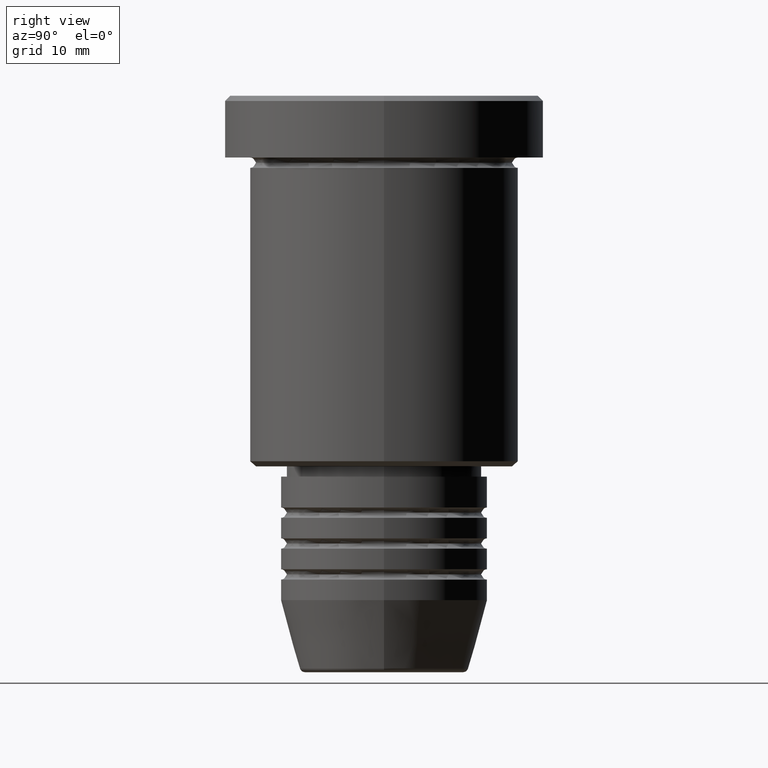
[diagram: clean part render]
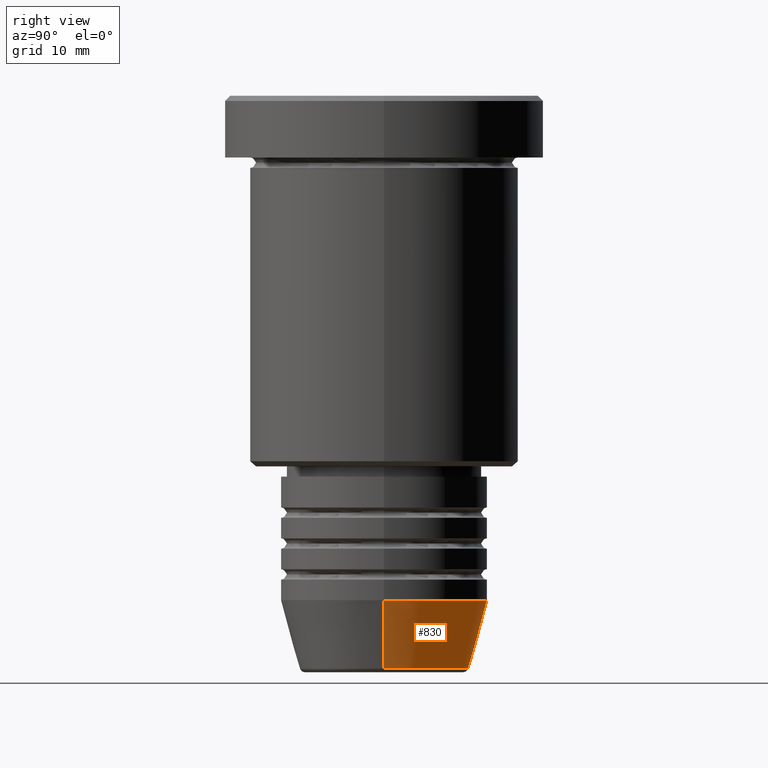
[diagram: same view with one face highlighted and labeled with its STEP entity id]
A machine part, right view. The second image highlights one B-rep face of the part: STEP entity #830.
In plain terms, the highlighted conical surface has half-angle 15 deg.
Its self-contained STEP definition (entity closure, byte-faithful):
#14 = CIRCLE ( 'NONE', #67, 10.00000000000000000 ) ;
#55 = CARTESIAN_POINT ( 'NONE',  ( 0.000000000000000000, 0.000000000000000000, -48.99999999999999289 ) ) ;
#58 = VERTEX_POINT ( 'NONE', #1066 ) ;
#67 = AXIS2_PLACEMENT_3D ( 'NONE', #55, #610, #976 ) ;
#183 = CARTESIAN_POINT ( 'NONE',  ( 10.00000000000000000, 0.000000000000000000, -48.99999999999999289 ) ) ;
#187 = EDGE_CURVE ( 'NONE', #332, #577, #562, .T. ) ;
#196 = DIRECTION ( 'NONE',  ( -0.000000000000000000, -0.000000000000000000, 1.000000000000000000 ) ) ;
#200 = ORIENTED_EDGE ( 'NONE', *, *, #1173, .T. ) ;
#226 = VERTEX_POINT ( 'NONE', #183 ) ;
#250 = CIRCLE ( 'NONE', #964, 8.223655072137191269 ) ;
#251 = ORIENTED_EDGE ( 'NONE', *, *, #792, .F. ) ;
#332 = VERTEX_POINT ( 'NONE', #539 ) ;
#353 = CONICAL_SURFACE ( 'NONE', #481, 10.00000000000000000, 0.2617993877991500740 ) ;
#369 = DIRECTION ( 'NONE',  ( -0.000000000000000000, -0.000000000000000000, 1.000000000000000000 ) ) ;
#375 = DIRECTION ( 'NONE',  ( 1.000000000000000000, 0.000000000000000000, 0.000000000000000000 ) ) ;
#465 = DIRECTION ( 'NONE',  ( 1.000000000000000000, 0.000000000000000000, 0.000000000000000000 ) ) ;
#481 = AXIS2_PLACEMENT_3D ( 'NONE', #677, #196, #465 ) ;
#539 = CARTESIAN_POINT ( 'NONE',  ( -8.223655072137191269, 1.115877042642912054E-15, -55.62940952255125637 ) ) ;
#542 = LINE ( 'NONE', #861, #909 ) ;
#562 = LINE ( 'NONE', #920, #1048 ) ;
#577 = VERTEX_POINT ( 'NONE', #690 ) ;
#610 = DIRECTION ( 'NONE',  ( -0.000000000000000000, -0.000000000000000000, 1.000000000000000000 ) ) ;
#663 = EDGE_CURVE ( 'NONE', #226, #577, #14, .T. ) ;
#677 = CARTESIAN_POINT ( 'NONE',  ( 0.000000000000000000, 0.000000000000000000, -48.99999999999999289 ) ) ;
#690 = CARTESIAN_POINT ( 'NONE',  ( -10.00000000000000000, 1.224646799147353256E-15, -48.99999999999999289 ) ) ;
#759 = DIRECTION ( 'NONE',  ( 0.2588190451025213501, 0.000000000000000000, 0.9659258262890680902 ) ) ;
#792 = EDGE_CURVE ( 'NONE', #58, #226, #542, .T. ) ;
#830 = ADVANCED_FACE ( 'NONE', ( #932 ), #353, .T. ) ;
#851 = EDGE_LOOP ( 'NONE', ( #200, #911, #1105, #251 ) ) ;
#861 = CARTESIAN_POINT ( 'NONE',  ( 10.00000000000000000, 0.000000000000000000, -48.99999999999999289 ) ) ;
#909 = VECTOR ( 'NONE', #759, 1000.000000000000000 ) ;
#911 = ORIENTED_EDGE ( 'NONE', *, *, #187, .T. ) ;
#920 = CARTESIAN_POINT ( 'NONE',  ( -10.00000000000000000, 1.224646799147353256E-15, -48.99999999999999289 ) ) ;
#932 = FACE_OUTER_BOUND ( 'NONE', #851, .T. ) ;
#964 = AXIS2_PLACEMENT_3D ( 'NONE', #1159, #369, #375 ) ;
#976 = DIRECTION ( 'NONE',  ( 1.000000000000000000, 0.000000000000000000, 0.000000000000000000 ) ) ;
#1048 = VECTOR ( 'NONE', #1178, 1000.000000000000000 ) ;
#1066 = CARTESIAN_POINT ( 'NONE',  ( 8.223655072137191269, 0.000000000000000000, -55.62940952255125637 ) ) ;
#1105 = ORIENTED_EDGE ( 'NONE', *, *, #663, .F. ) ;
#1159 = CARTESIAN_POINT ( 'NONE',  ( 0.000000000000000000, 0.000000000000000000, -55.62940952255125637 ) ) ;
#1173 = EDGE_CURVE ( 'NONE', #58, #332, #250, .T. ) ;
#1178 = DIRECTION ( 'NONE',  ( -0.2588190451025213501, 3.169619151431772337E-17, 0.9659258262890680902 ) ) ;